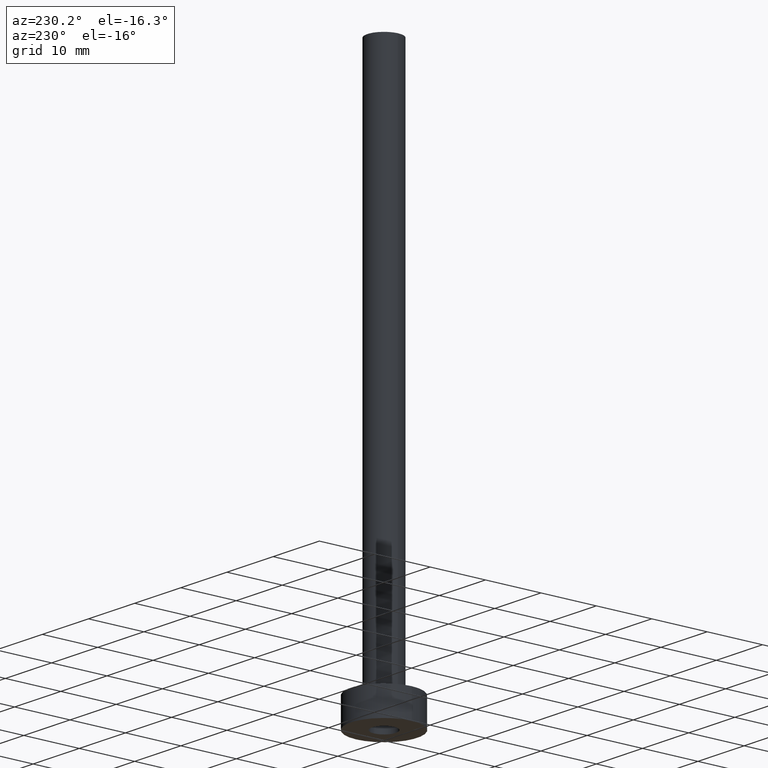
[diagram: clean part render]
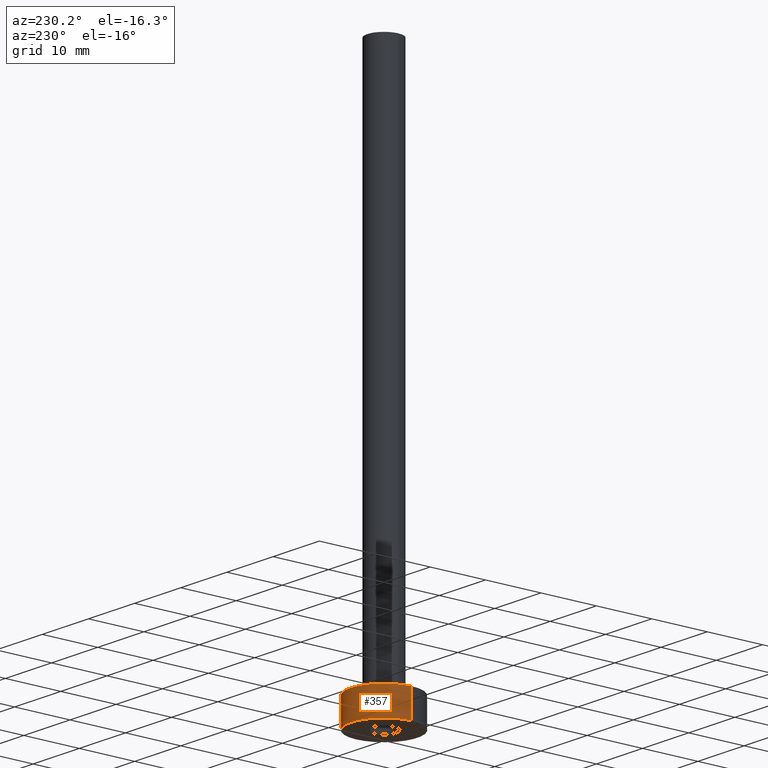
[diagram: same view with one face highlighted and labeled with its STEP entity id]
A machine part, auxiliary view. The second image highlights one B-rep face of the part: STEP entity #357.
In plain terms, the highlighted cylindrical surface (partial cylindrical patch) has radius 6 mm, axis along (-0, -0, -1).
Its self-contained STEP definition (entity closure, byte-faithful):
#19 = DIRECTION ( 'NONE',  ( 0.000000000000000000, 0.000000000000000000, 1.000000000000000000 ) ) ;
#27 = CYLINDRICAL_SURFACE ( 'NONE', #431, 6.000000000000000888 ) ;
#32 = CARTESIAN_POINT ( 'NONE',  ( 6.000000000000000888, 7.347880794884120722E-16, 5.000000000000000000 ) ) ;
#71 = CARTESIAN_POINT ( 'NONE',  ( -6.000000000000000888, 0.000000000000000000, 0.000000000000000000 ) ) ;
#74 = EDGE_CURVE ( 'NONE', #426, #385, #199, .T. ) ;
#80 = CARTESIAN_POINT ( 'NONE',  ( 0.000000000000000000, 0.000000000000000000, 0.000000000000000000 ) ) ;
#86 = CIRCLE ( 'NONE', #188, 6.000000000000000888 ) ;
#101 = DIRECTION ( 'NONE',  ( -0.000000000000000000, -0.000000000000000000, -1.000000000000000000 ) ) ;
#109 = DIRECTION ( 'NONE',  ( -0.000000000000000000, -0.000000000000000000, -1.000000000000000000 ) ) ;
#143 = VERTEX_POINT ( 'NONE', #376 ) ;
#161 = DIRECTION ( 'NONE',  ( 1.000000000000000000, 0.000000000000000000, 0.000000000000000000 ) ) ;
#168 = CARTESIAN_POINT ( 'NONE',  ( 6.000000000000000888, 7.347880794884120722E-16, 0.000000000000000000 ) ) ;
#173 = ORIENTED_EDGE ( 'NONE', *, *, #74, .T. ) ;
#175 = LINE ( 'NONE', #32, #442 ) ;
#181 = EDGE_LOOP ( 'NONE', ( #412, #259, #173, #315 ) ) ;
#188 = AXIS2_PLACEMENT_3D ( 'NONE', #274, #19, #161 ) ;
#199 = CIRCLE ( 'NONE', #459, 6.000000000000000888 ) ;
#202 = VECTOR ( 'NONE', #101, 1000.000000000000000 ) ;
#213 = DIRECTION ( 'NONE',  ( -1.000000000000000000, 0.000000000000000000, 0.000000000000000000 ) ) ;
#258 = EDGE_CURVE ( 'NONE', #354, #143, #86, .T. ) ;
#259 = ORIENTED_EDGE ( 'NONE', *, *, #339, .T. ) ;
#274 = CARTESIAN_POINT ( 'NONE',  ( 0.000000000000000000, 0.000000000000000000, 5.000000000000000000 ) ) ;
#283 = DIRECTION ( 'NONE',  ( -0.000000000000000000, -0.000000000000000000, -1.000000000000000000 ) ) ;
#310 = LINE ( 'NONE', #414, #202 ) ;
#315 = ORIENTED_EDGE ( 'NONE', *, *, #423, .F. ) ;
#320 = DIRECTION ( 'NONE',  ( 0.000000000000000000, 0.000000000000000000, 1.000000000000000000 ) ) ;
#339 = EDGE_CURVE ( 'NONE', #354, #426, #175, .T. ) ;
#345 = CARTESIAN_POINT ( 'NONE',  ( 6.000000000000000888, 7.347880794884120722E-16, 5.000000000000000000 ) ) ;
#352 = CARTESIAN_POINT ( 'NONE',  ( 0.000000000000000000, 0.000000000000000000, 5.000000000000000000 ) ) ;
#354 = VERTEX_POINT ( 'NONE', #345 ) ;
#357 = ADVANCED_FACE ( 'NONE', ( #386 ), #27, .T. ) ;
#376 = CARTESIAN_POINT ( 'NONE',  ( -6.000000000000000888, 0.000000000000000000, 5.000000000000000000 ) ) ;
#385 = VERTEX_POINT ( 'NONE', #71 ) ;
#386 = FACE_OUTER_BOUND ( 'NONE', #181, .T. ) ;
#394 = DIRECTION ( 'NONE',  ( 1.000000000000000000, 0.000000000000000000, 0.000000000000000000 ) ) ;
#412 = ORIENTED_EDGE ( 'NONE', *, *, #258, .F. ) ;
#414 = CARTESIAN_POINT ( 'NONE',  ( -6.000000000000000888, 0.000000000000000000, 5.000000000000000000 ) ) ;
#423 = EDGE_CURVE ( 'NONE', #143, #385, #310, .T. ) ;
#426 = VERTEX_POINT ( 'NONE', #168 ) ;
#431 = AXIS2_PLACEMENT_3D ( 'NONE', #352, #283, #213 ) ;
#442 = VECTOR ( 'NONE', #109, 1000.000000000000000 ) ;
#459 = AXIS2_PLACEMENT_3D ( 'NONE', #80, #320, #394 ) ;